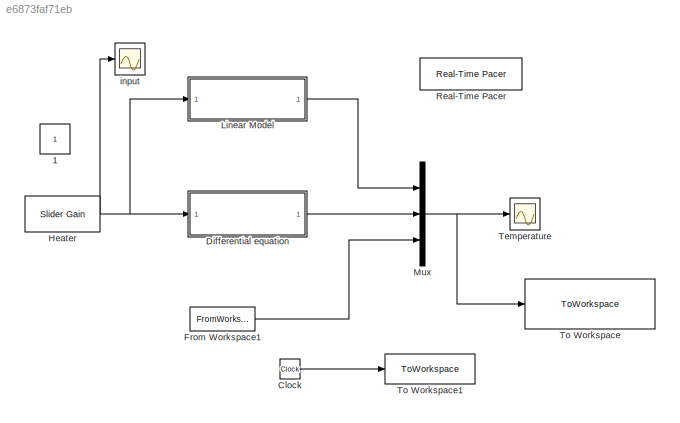
MODEL slx_e6873faf71eb
KIND model
CONFIG AbsTol = auto
CONFIG EnableMultiTasking = on
CONFIG FixedStep = auto
CONFIG MaxStep = auto
CONFIG MinStep = auto
CONFIG RelTol = 1e-3
CONFIG SampleTimeConstraint = Unconstrained
CONFIG SolverName = VariableStepAuto
CONFIG StartFcn = clear all
CONFIG StartTime = 0.0
CONFIG StopTime = 500
BLOCK [Constant] 1
  IOType = siggen
BLOCK [Clock] Clock
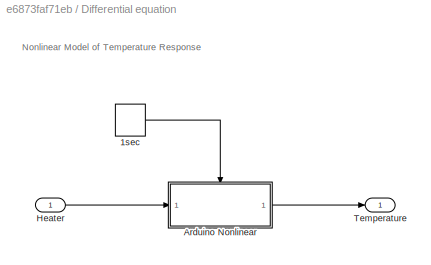
BLOCK [SubSystem] Differential equation
BLOCK [DiscretePulseGenerator] Differential equation/1sec
  Period = 1
  PulseType = Time based
  PulseWidth = 50
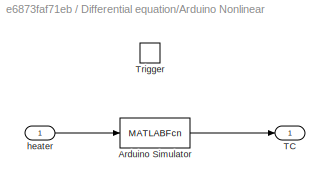
BLOCK [SubSystem] Differential equation/Arduino Nonlinear
  TreatAsAtomicUnit = on
BLOCK [MATLABFcn] Differential equation/Arduino Nonlinear/Arduino Simulator
  MATLABFcn = arduino_sim
BLOCK [Outport] Differential equation/Arduino Nonlinear/TC
  InitialOutput = 23
  VectorParamsAs1DForOutWhenUnconnected = off
BLOCK [TriggerPort] Differential equation/Arduino Nonlinear/Trigger
  StatesWhenEnabling = held
  VariantControl = Variant
BLOCK [Inport] Differential equation/Arduino Nonlinear/heater
BLOCK [Inport] Differential equation/Heater
BLOCK [Outport] Differential equation/Temperature
  VectorParamsAs1DForOutWhenUnconnected = off
BLOCK [FromWorkspace] From Workspace1
  VariableName = Temprature_control_lab
BLOCK [Reference] Heater  REF=simulink/Math
Operations/Slider
Gain
  SourceBlock = simulink/Math\nOperations/Slider\nGain
  SourceType = Slider Gain
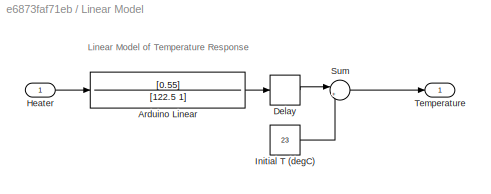
BLOCK [SubSystem] Linear Model
BLOCK [TransferFcn] Linear Model/Arduino Linear
  Denominator = [122.5 1]
  Numerator = [0.55]
BLOCK [TransportDelay] Linear Model/Delay
  DelayTime = 3
BLOCK [Inport] Linear Model/Heater
BLOCK [Constant] Linear Model/Initial T (degC)
  Value = 23
BLOCK [Sum] Linear Model/Sum
  Inputs = |++
BLOCK [Outport] Linear Model/Temperature
  VectorParamsAs1DForOutWhenUnconnected = off
BLOCK [Mux] Mux
  DisplayOption = bar
  Inputs = 3
BLOCK [Reference] Real-Time Pacer  REF=realtime_pacer_lib/Real-Time Pacer
  SourceBlock = realtime_pacer_lib/Real-Time Pacer
  SourceType = RealTime_Pacer
BLOCK [Scope] Temperature
  Floating = off
  NumInputPorts = 1
  ScopeSpecificationString = Simulink.scopes.TimeScopeBlockCfg('CurrentConfiguration', extmgr.ConfigurationSet(extmgr.Configuration('Core','General UI',true),extmgr.Configuration('Core','Source UI',true),extmgr.Configuration('Sources','WiredSimulink',true,'DataLoggingVariableName','ScopeData1'),extmgr.Configuration('Visuals','Time Domain',true,'SerializedDisplays',{struct('MinYLimReal','20.97401','MaxYLimReal','40.33702','YLa...<+1473ch>
BLOCK [ToWorkspace] To Workspace
  FixptAsFi = on
  MaxDataPoints = inf
  SampleTime = -1
  Save2DSignal = 2-D array (concatenate along first dimension)
  VariableName = Temperature_out
BLOCK [ToWorkspace] To Workspace1
  FixptAsFi = on
  MaxDataPoints = inf
  SampleTime = -1
  Save2DSignal = 2-D array (concatenate along first dimension)
  VariableName = out_time
BLOCK [Scope] input
  Floating = off
  NumInputPorts = 1
  ScopeSpecificationString = Simulink.scopes.TimeScopeBlockCfg('CurrentConfiguration', extmgr.ConfigurationSet(extmgr.Configuration('Core','General UI',true),extmgr.Configuration('Core','Source UI',true),extmgr.Configuration('Sources','WiredSimulink',true,'DataLoggingVariableName','ScopeData1'),extmgr.Configuration('Visuals','Time Domain',true,'SerializedDisplays',{struct('MinYLimReal','21.211','MaxYLimReal','28.99119','YLabe...<+1689ch>
ANNOTATION Differential equation: Nonlinear Model of Temperature Response
ANNOTATION Linear Model: Linear Model of Temperature Response
LINE Clock:1 -> To Workspace1:1
LINE Differential equation/1sec:1 -> Differential equation/Arduino Nonlinear:trigger
LINE Differential equation/Arduino Nonlinear/Arduino Simulator:1 -> Differential equation/Arduino Nonlinear/TC:1
LINE Differential equation/Arduino Nonlinear/heater:1 -> Differential equation/Arduino Nonlinear/Arduino Simulator:1
LINE Differential equation/Arduino Nonlinear:1 -> Differential equation/Temperature:1
LINE Differential equation/Heater:1 -> Differential equation/Arduino Nonlinear:1
LINE Differential equation:1 -> Mux:2
LINE From Workspace1:1 -> Mux:3
NET Heater:1 -> Differential equation:1, Linear Model:1, input:1
LINE Linear Model/Arduino Linear:1 -> Linear Model/Delay:1
LINE Linear Model/Delay:1 -> Linear Model/Sum:1
LINE Linear Model/Heater:1 -> Linear Model/Arduino Linear:1
LINE Linear Model/Initial T (degC):1 -> Linear Model/Sum:2
LINE Linear Model/Sum:1 -> Linear Model/Temperature:1
LINE Linear Model:1 -> Mux:1
NET Mux:1 -> Temperature:1, To Workspace:1
note: NET lines group one-source signal fan-out (src -> all destinations, sorted); 1:1 wires keep LINE
